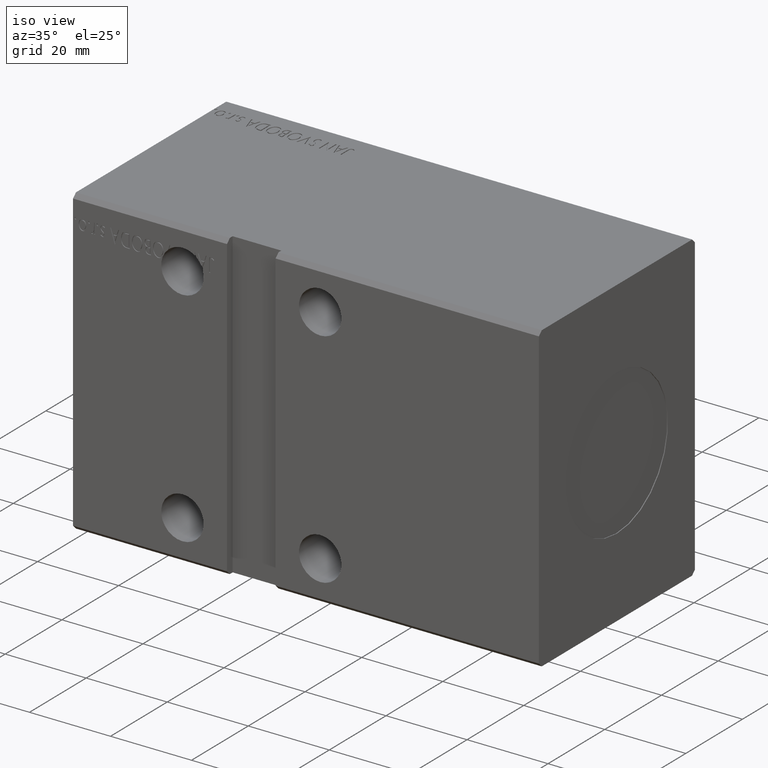
[diagram: clean part render]
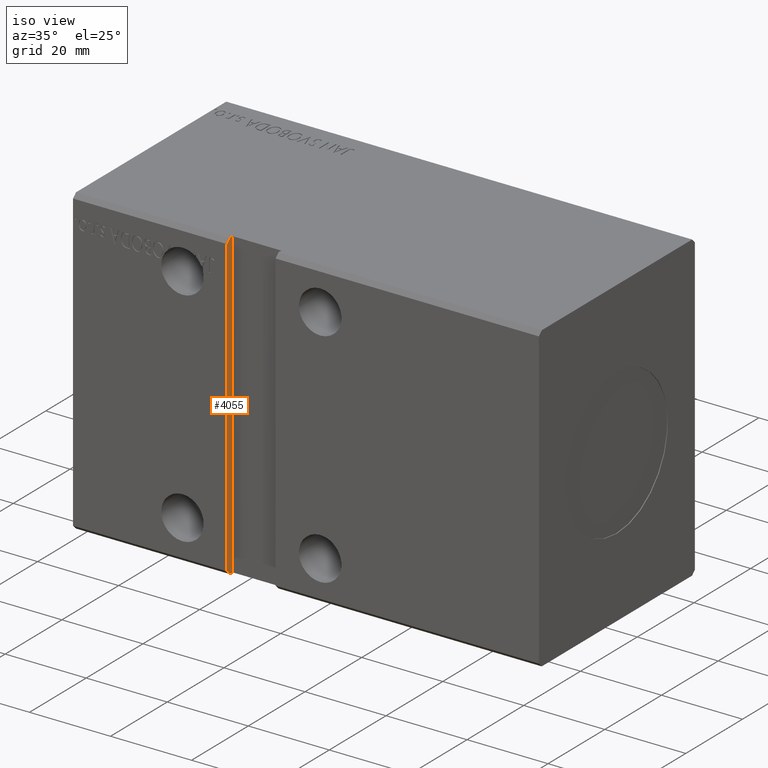
[diagram: same view with one face highlighted and labeled with its STEP entity id]
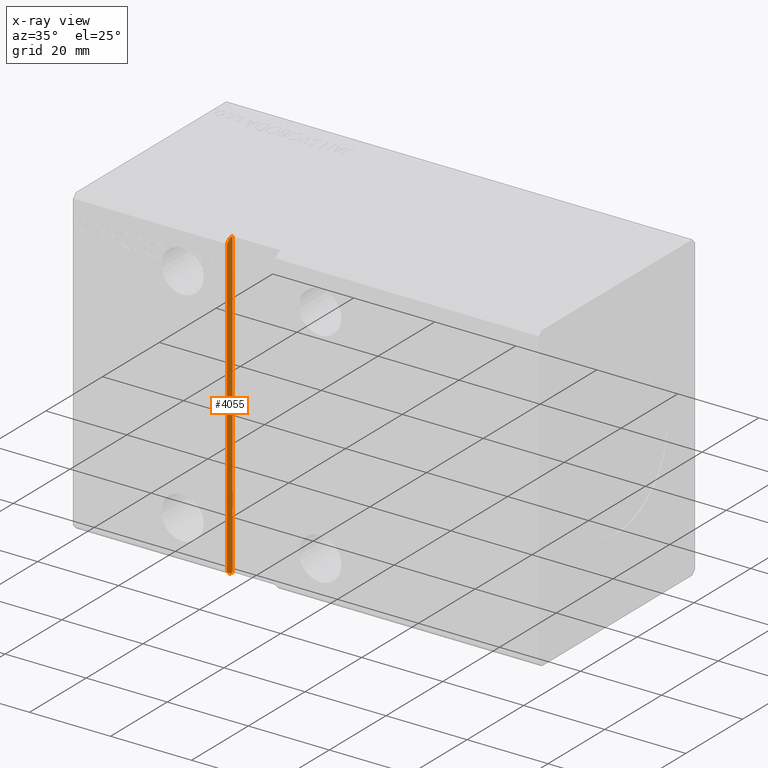
[diagram: x-ray of the same camera — body ghosted, the highlighted face saturated]
A machine part, iso view. The second image highlights one B-rep face of the part: STEP entity #4055.
The next image is the same camera in x-ray: the body ghosted, the highlighted face saturated — about 0% of this face is hidden behind the body in this view.
In plain terms, the highlighted planar face has unit normal (-1, 0, -0).
Its self-contained STEP definition (entity closure, byte-faithful):
#648 = VECTOR ( 'NONE', #34370, 1000.000000000000000 ) ;
#3217 = CARTESIAN_POINT ( 'NONE',  ( 38.00000000000000711, -25.50000000000000355, -37.49999999999999289 ) ) ;
#3632 = ORIENTED_EDGE ( 'NONE', *, *, #12306, .F. ) ;
#3651 = LINE ( 'NONE', #37553, #648 ) ;
#3724 = VECTOR ( 'NONE', #18324, 1000.000000000000000 ) ;
#3767 = VERTEX_POINT ( 'NONE', #32259 ) ;
#4055 = ADVANCED_FACE ( 'NONE', ( #13026 ), #6414, .F. ) ;
#4182 = AXIS2_PLACEMENT_3D ( 'NONE', #7015, #21392, #24988 ) ;
#5489 = EDGE_CURVE ( 'NONE', #25991, #23220, #36265, .T. ) ;
#6414 = PLANE ( 'NONE',  #4182 ) ;
#6527 = LINE ( 'NONE', #36845, #3724 ) ;
#7015 = CARTESIAN_POINT ( 'NONE',  ( 38.00000000000000000, -25.50000000000000711, 37.50000000000000711 ) ) ;
#8182 = EDGE_CURVE ( 'NONE', #33317, #27504, #6527, .T. ) ;
#9645 = LINE ( 'NONE', #21413, #32333 ) ;
#10696 = CARTESIAN_POINT ( 'NONE',  ( 37.99999999999999289, -27.50000000000000000, -36.49999999999999289 ) ) ;
#10991 = VERTEX_POINT ( 'NONE', #25493 ) ;
#11895 = VECTOR ( 'NONE', #33466, 1000.000000000000000 ) ;
#12306 = EDGE_CURVE ( 'NONE', #25991, #3767, #9645, .T. ) ;
#12398 = ORIENTED_EDGE ( 'NONE', *, *, #16735, .F. ) ;
#12728 = LINE ( 'NONE', #10696, #34947 ) ;
#13026 = FACE_OUTER_BOUND ( 'NONE', #36894, .T. ) ;
#13815 = VECTOR ( 'NONE', #30649, 1000.000000000000000 ) ;
#15289 = EDGE_CURVE ( 'NONE', #27504, #23220, #12728, .T. ) ;
#16735 = EDGE_CURVE ( 'NONE', #10991, #33317, #21697, .T. ) ;
#16876 = ORIENTED_EDGE ( 'NONE', *, *, #8182, .F. ) ;
#18324 = DIRECTION ( 'NONE',  ( -0.000000000000000000, -1.000000000000000000, -5.507058653894625237E-17 ) ) ;
#18631 = ORIENTED_EDGE ( 'NONE', *, *, #15289, .F. ) ;
#21333 = CARTESIAN_POINT ( 'NONE',  ( 38.00000000000000000, -27.50000000000000711, 37.50000000000000711 ) ) ;
#21392 = DIRECTION ( 'NONE',  ( -1.000000000000000000, 5.095052762929194839E-33, -9.251858538542971581E-17 ) ) ;
#21413 = CARTESIAN_POINT ( 'NONE',  ( 37.99999999999999289, -26.50000000000001066, 37.50000000000000000 ) ) ;
#21697 = LINE ( 'NONE', #36819, #13815 ) ;
#22308 = ORIENTED_EDGE ( 'NONE', *, *, #5489, .T. ) ;
#23220 = VERTEX_POINT ( 'NONE', #30254 ) ;
#24988 = DIRECTION ( 'NONE',  ( -9.251858538542971581E-17, 0.000000000000000000, 1.000000000000000000 ) ) ;
#25493 = CARTESIAN_POINT ( 'NONE',  ( 38.00000000000000000, -25.50000000000000711, 37.50000000000000711 ) ) ;
#25897 = CARTESIAN_POINT ( 'NONE',  ( 38.00000000000000000, -27.50000000000000711, 36.50000000000000711 ) ) ;
#25991 = VERTEX_POINT ( 'NONE', #25897 ) ;
#27504 = VERTEX_POINT ( 'NONE', #27732 ) ;
#27732 = CARTESIAN_POINT ( 'NONE',  ( 38.00000000000000000, -26.50000000000000711, -37.49999999999999289 ) ) ;
#30254 = CARTESIAN_POINT ( 'NONE',  ( 37.99999999999999289, -27.50000000000000355, -36.49999999999998579 ) ) ;
#30649 = DIRECTION ( 'NONE',  ( 9.251858538542971581E-17, 9.251858538542971581E-17, -1.000000000000000000 ) ) ;
#32020 = DIRECTION ( 'NONE',  ( -6.542051911182419742E-17, -0.7071067811865450192, 0.7071067811865500152 ) ) ;
#32259 = CARTESIAN_POINT ( 'NONE',  ( 38.00000000000000000, -26.50000000000000711, 37.50000000000000711 ) ) ;
#32333 = VECTOR ( 'NONE', #33957, 1000.000000000000114 ) ;
#33063 = EDGE_CURVE ( 'NONE', #10991, #3767, #3651, .T. ) ;
#33317 = VERTEX_POINT ( 'NONE', #3217 ) ;
#33466 = DIRECTION ( 'NONE',  ( 9.251858538542971581E-17, 9.251858538542971581E-17, -1.000000000000000000 ) ) ;
#33957 = DIRECTION ( 'NONE',  ( -6.542051911182395090E-17, 0.7071067811865474617, 0.7071067811865474617 ) ) ;
#34370 = DIRECTION ( 'NONE',  ( -0.000000000000000000, -1.000000000000000000, -5.507058653894625237E-17 ) ) ;
#34947 = VECTOR ( 'NONE', #32020, 1000.000000000000000 ) ;
#36265 = LINE ( 'NONE', #21333, #11895 ) ;
#36819 = CARTESIAN_POINT ( 'NONE',  ( 38.00000000000000000, -25.50000000000000711, 37.50000000000000711 ) ) ;
#36845 = CARTESIAN_POINT ( 'NONE',  ( 38.00000000000000711, -25.50000000000000355, -37.49999999999999289 ) ) ;
#36894 = EDGE_LOOP ( 'NONE', ( #22308, #18631, #16876, #12398, #37696, #3632 ) ) ;
#37553 = CARTESIAN_POINT ( 'NONE',  ( 38.00000000000000000, -25.50000000000000711, 37.50000000000000711 ) ) ;
#37696 = ORIENTED_EDGE ( 'NONE', *, *, #33063, .T. ) ;